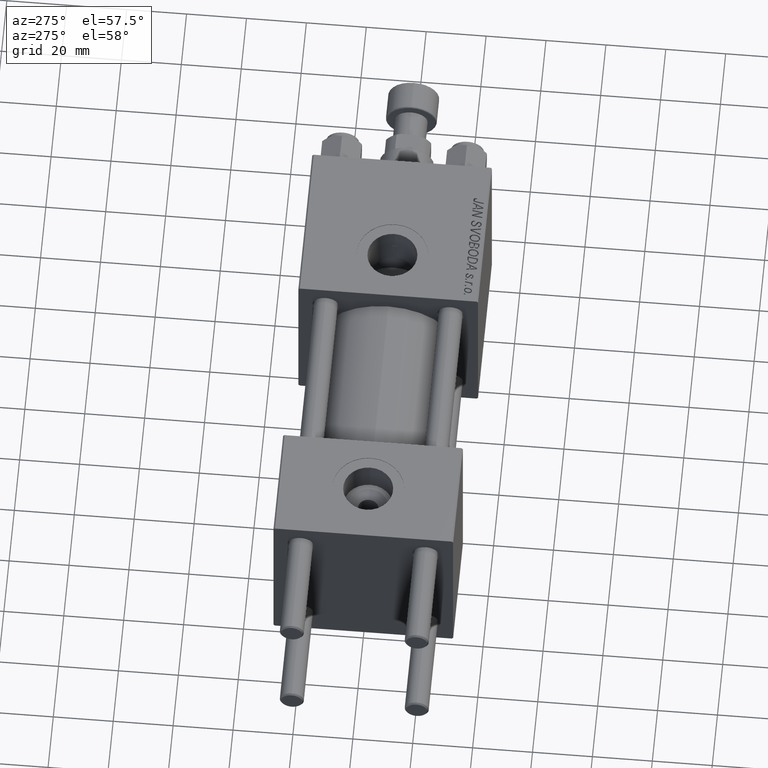
[diagram: clean part render]
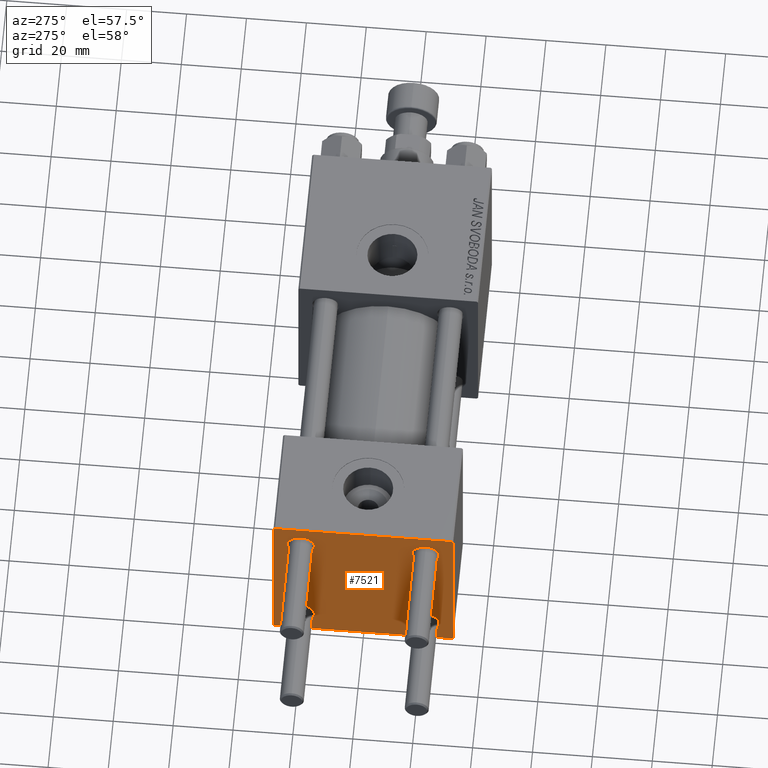
[diagram: same view with one face highlighted and labeled with its STEP entity id]
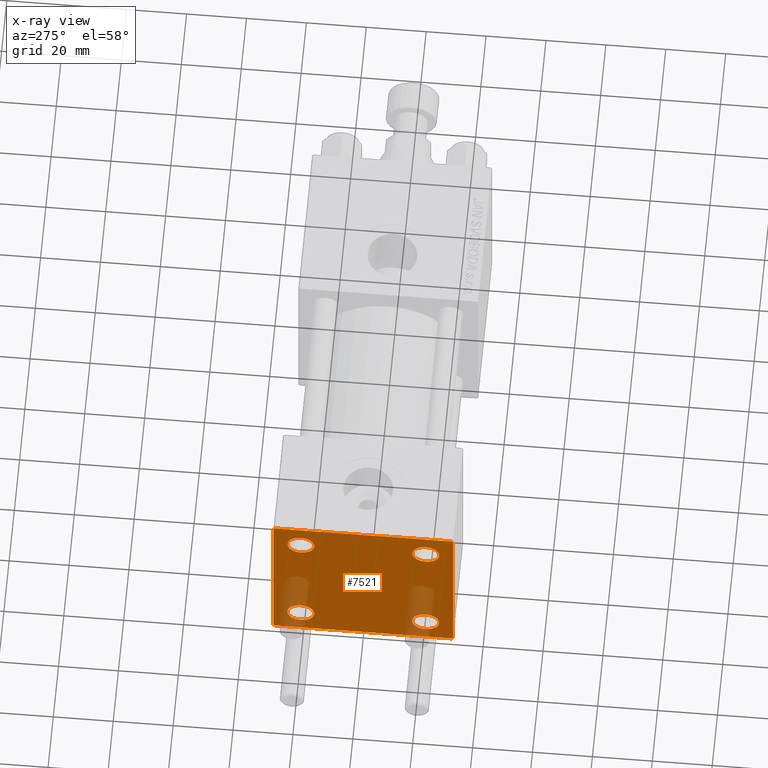
[diagram: x-ray of the same camera — body ghosted, the highlighted face saturated]
A machine part, auxiliary view. The second image highlights one B-rep face of the part: STEP entity #7521.
The next image is the same camera in x-ray: the body ghosted, the highlighted face saturated — about 12% of this face is hidden behind the body in this view.
In plain terms, the highlighted planar face has unit normal (-1, 0, 0).
Its self-contained STEP definition (entity closure, byte-faithful):
#463 = DIRECTION ( 'NONE',  ( 0.000000000000000000, 0.000000000000000000, 1.000000000000000000 ) ) ;
#592 = EDGE_LOOP ( 'NONE', ( #16295, #11331 ) ) ;
#829 = EDGE_LOOP ( 'NONE', ( #31795, #32333, #14890, #9513, #2481, #23166, #21589, #40036 ) ) ;
#1098 = EDGE_LOOP ( 'NONE', ( #7085, #9640 ) ) ;
#1324 = AXIS2_PLACEMENT_3D ( 'NONE', #30950, #12125, #12372 ) ;
#1738 = FACE_BOUND ( 'NONE', #18914, .T. ) ;
#1773 = DIRECTION ( 'NONE',  ( -0.000000000000000000, -0.7071067811865574537, -0.7071067811865376918 ) ) ;
#1895 = VERTEX_POINT ( 'NONE', #23723 ) ;
#2176 = LINE ( 'NONE', #10041, #46136 ) ;
#2352 = ORIENTED_EDGE ( 'NONE', *, *, #44923, .T. ) ;
#2481 = ORIENTED_EDGE ( 'NONE', *, *, #28771, .F. ) ;
#3022 = DIRECTION ( 'NONE',  ( 1.000000000000000000, -0.000000000000000000, 0.000000000000000000 ) ) ;
#3479 = CIRCLE ( 'NONE', #9967, 4.500000000000017764 ) ;
#3991 = EDGE_CURVE ( 'NONE', #32459, #26860, #38573, .T. ) ;
#4057 = LINE ( 'NONE', #35073, #32756 ) ;
#4272 = DIRECTION ( 'NONE',  ( 0.000000000000000000, 0.000000000000000000, 1.000000000000000000 ) ) ;
#5187 = CARTESIAN_POINT ( 'NONE',  ( 0.000000000000000000, -29.49999999999998579, 29.99999999999999289 ) ) ;
#5299 = DIRECTION ( 'NONE',  ( 0.000000000000000000, 0.000000000000000000, 1.000000000000000000 ) ) ;
#6192 = VERTEX_POINT ( 'NONE', #23427 ) ;
#6291 = DIRECTION ( 'NONE',  ( -0.000000000000000000, 0.000000000000000000, 1.000000000000000000 ) ) ;
#6547 = DIRECTION ( 'NONE',  ( -1.000000000000000000, 0.000000000000000000, -0.000000000000000000 ) ) ;
#6849 = CIRCLE ( 'NONE', #40983, 4.500000000000017764 ) ;
#6890 = ORIENTED_EDGE ( 'NONE', *, *, #35384, .T. ) ;
#6911 = DIRECTION ( 'NONE',  ( 1.000000000000000000, -0.000000000000000000, 0.000000000000000000 ) ) ;
#6950 = EDGE_CURVE ( 'NONE', #23590, #48158, #2176, .T. ) ;
#7085 = ORIENTED_EDGE ( 'NONE', *, *, #23112, .T. ) ;
#7521 = ADVANCED_FACE ( 'NONE', ( #25880, #1738, #49013, #29181, #21038 ), #32997, .T. ) ;
#8605 = CIRCLE ( 'NONE', #1324, 4.500000000000017764 ) ;
#8622 = DIRECTION ( 'NONE',  ( 1.000000000000000000, -0.000000000000000000, 0.000000000000000000 ) ) ;
#9347 = EDGE_CURVE ( 'NONE', #44295, #32459, #35184, .T. ) ;
#9513 = ORIENTED_EDGE ( 'NONE', *, *, #35854, .T. ) ;
#9640 = ORIENTED_EDGE ( 'NONE', *, *, #24518, .T. ) ;
#9967 = AXIS2_PLACEMENT_3D ( 'NONE', #25207, #21381, #17579 ) ;
#10041 = CARTESIAN_POINT ( 'NONE',  ( 0.000000000000000000, 29.99999999999999289, -30.00000000000000000 ) ) ;
#10084 = EDGE_CURVE ( 'NONE', #16764, #23608, #35440, .T. ) ;
#10240 = DIRECTION ( 'NONE',  ( 0.000000000000000000, 0.000000000000000000, 1.000000000000000000 ) ) ;
#10492 = CARTESIAN_POINT ( 'NONE',  ( 0.000000000000000000, 20.84999999999999787, -20.85000000000000142 ) ) ;
#10841 = DIRECTION ( 'NONE',  ( 0.000000000000000000, 0.000000000000000000, 1.000000000000000000 ) ) ;
#10977 = CARTESIAN_POINT ( 'NONE',  ( 0.000000000000000000, 20.84999999999999787, -25.35000000000001918 ) ) ;
#11126 = CARTESIAN_POINT ( 'NONE',  ( 0.000000000000000000, 29.99999999999999289, 30.00000000000000000 ) ) ;
#11331 = ORIENTED_EDGE ( 'NONE', *, *, #23186, .T. ) ;
#12125 = DIRECTION ( 'NONE',  ( 1.000000000000000000, -0.000000000000000000, 0.000000000000000000 ) ) ;
#12303 = CARTESIAN_POINT ( 'NONE',  ( -0.000000000000000000, -29.74999999999999645, 29.74999999999999645 ) ) ;
#12372 = DIRECTION ( 'NONE',  ( 0.000000000000000000, 0.000000000000000000, 1.000000000000000000 ) ) ;
#12410 = EDGE_CURVE ( 'NONE', #44295, #23608, #37035, .T. ) ;
#14344 = CARTESIAN_POINT ( 'NONE',  ( 0.000000000000000000, 29.99999999999999289, -29.50000000000000000 ) ) ;
#14399 = DIRECTION ( 'NONE',  ( 0.000000000000000000, -1.000000000000000000, -1.156482317317871725E-16 ) ) ;
#14890 = ORIENTED_EDGE ( 'NONE', *, *, #6950, .T. ) ;
#14906 = DIRECTION ( 'NONE',  ( 1.000000000000000000, -0.000000000000000000, 0.000000000000000000 ) ) ;
#15862 = CARTESIAN_POINT ( 'NONE',  ( 0.000000000000000000, -20.84999999999999076, -25.35000000000002274 ) ) ;
#15961 = CARTESIAN_POINT ( 'NONE',  ( 0.000000000000000000, 20.84999999999999787, 20.85000000000000142 ) ) ;
#16272 = CARTESIAN_POINT ( 'NONE',  ( 0.000000000000000000, -20.84999999999999076, -20.85000000000000497 ) ) ;
#16295 = ORIENTED_EDGE ( 'NONE', *, *, #38748, .T. ) ;
#16399 = AXIS2_PLACEMENT_3D ( 'NONE', #45486, #3022, #22084 ) ;
#16604 = DIRECTION ( 'NONE',  ( 0.000000000000000000, 0.7071067811865474617, -0.7071067811865474617 ) ) ;
#16764 = VERTEX_POINT ( 'NONE', #39709 ) ;
#16960 = CIRCLE ( 'NONE', #25055, 4.500000000000017764 ) ;
#17579 = DIRECTION ( 'NONE',  ( 0.000000000000000000, 0.000000000000000000, 1.000000000000000000 ) ) ;
#17975 = CARTESIAN_POINT ( 'NONE',  ( 0.000000000000000000, -20.84999999999999076, -20.85000000000000497 ) ) ;
#18914 = EDGE_LOOP ( 'NONE', ( #24645, #2352 ) ) ;
#19370 = AXIS2_PLACEMENT_3D ( 'NONE', #45457, #6547, #6291 ) ;
#20174 = CARTESIAN_POINT ( 'NONE',  ( 0.000000000000000000, 29.74999999999999645, 29.74999999999999645 ) ) ;
#21038 = FACE_OUTER_BOUND ( 'NONE', #829, .T. ) ;
#21381 = DIRECTION ( 'NONE',  ( 1.000000000000000000, -0.000000000000000000, 0.000000000000000000 ) ) ;
#21589 = ORIENTED_EDGE ( 'NONE', *, *, #12410, .F. ) ;
#22084 = DIRECTION ( 'NONE',  ( 0.000000000000000000, 0.000000000000000000, 1.000000000000000000 ) ) ;
#23112 = EDGE_CURVE ( 'NONE', #44625, #43223, #3479, .T. ) ;
#23166 = ORIENTED_EDGE ( 'NONE', *, *, #10084, .T. ) ;
#23186 = EDGE_CURVE ( 'NONE', #1895, #38231, #6849, .T. ) ;
#23427 = CARTESIAN_POINT ( 'NONE',  ( 0.000000000000000000, -20.84999999999999076, -16.34999999999998721 ) ) ;
#23590 = VERTEX_POINT ( 'NONE', #32149 ) ;
#23608 = VERTEX_POINT ( 'NONE', #5187 ) ;
#23644 = DIRECTION ( 'NONE',  ( 0.000000000000000000, 0.000000000000000000, -1.000000000000000000 ) ) ;
#23723 = CARTESIAN_POINT ( 'NONE',  ( 0.000000000000000000, 20.84999999999999787, 16.34999999999998366 ) ) ;
#24479 = CARTESIAN_POINT ( 'NONE',  ( 0.000000000000000000, -29.50000000000000000, -30.00000000000000711 ) ) ;
#24518 = EDGE_CURVE ( 'NONE', #43223, #44625, #26958, .T. ) ;
#24645 = ORIENTED_EDGE ( 'NONE', *, *, #31240, .T. ) ;
#24653 = LINE ( 'NONE', #47789, #46111 ) ;
#25055 = AXIS2_PLACEMENT_3D ( 'NONE', #17975, #14906, #10841 ) ;
#25207 = CARTESIAN_POINT ( 'NONE',  ( 0.000000000000000000, -20.84999999999999076, 20.85000000000000497 ) ) ;
#25880 = FACE_BOUND ( 'NONE', #1098, .T. ) ;
#26388 = DIRECTION ( 'NONE',  ( 0.000000000000000000, 0.000000000000000000, -1.000000000000000000 ) ) ;
#26860 = VERTEX_POINT ( 'NONE', #14344 ) ;
#26958 = CIRCLE ( 'NONE', #16399, 4.500000000000017764 ) ;
#28471 = CARTESIAN_POINT ( 'NONE',  ( 0.000000000000000000, 20.84999999999999787, -16.34999999999998366 ) ) ;
#28771 = EDGE_CURVE ( 'NONE', #16764, #49615, #4057, .T. ) ;
#29181 = FACE_BOUND ( 'NONE', #592, .T. ) ;
#29412 = CARTESIAN_POINT ( 'NONE',  ( 0.000000000000000000, 29.99999999999999289, 30.00000000000000000 ) ) ;
#29468 = ORIENTED_EDGE ( 'NONE', *, *, #50245, .T. ) ;
#29778 = VECTOR ( 'NONE', #34828, 1000.000000000000114 ) ;
#29969 = CARTESIAN_POINT ( 'NONE',  ( 0.000000000000000000, -20.84999999999999076, 25.35000000000002274 ) ) ;
#30765 = CARTESIAN_POINT ( 'NONE',  ( 0.000000000000000000, -29.75000000000001066, -29.75000000000001066 ) ) ;
#30950 = CARTESIAN_POINT ( 'NONE',  ( 0.000000000000000000, 20.84999999999999787, -20.85000000000000142 ) ) ;
#31240 = EDGE_CURVE ( 'NONE', #6192, #33230, #46621, .T. ) ;
#31466 = DIRECTION ( 'NONE',  ( 1.000000000000000000, -0.000000000000000000, 0.000000000000000000 ) ) ;
#31537 = CARTESIAN_POINT ( 'NONE',  ( 0.000000000000000000, 29.99999999999999289, 29.50000000000000000 ) ) ;
#31795 = ORIENTED_EDGE ( 'NONE', *, *, #3991, .T. ) ;
#32026 = AXIS2_PLACEMENT_3D ( 'NONE', #16272, #8622, #5299 ) ;
#32149 = CARTESIAN_POINT ( 'NONE',  ( 0.000000000000000000, 29.49999999999997868, -30.00000000000000000 ) ) ;
#32333 = ORIENTED_EDGE ( 'NONE', *, *, #43137, .T. ) ;
#32404 = VECTOR ( 'NONE', #16604, 1000.000000000000114 ) ;
#32459 = VERTEX_POINT ( 'NONE', #31537 ) ;
#32756 = VECTOR ( 'NONE', #23644, 1000.000000000000000 ) ;
#32997 = PLANE ( 'NONE',  #19370 ) ;
#33230 = VERTEX_POINT ( 'NONE', #15862 ) ;
#33417 = EDGE_LOOP ( 'NONE', ( #29468, #6890 ) ) ;
#33491 = VERTEX_POINT ( 'NONE', #10977 ) ;
#33750 = CARTESIAN_POINT ( 'NONE',  ( 0.000000000000000000, -30.00000000000000000, -29.50000000000001776 ) ) ;
#34666 = VECTOR ( 'NONE', #26388, 1000.000000000000000 ) ;
#34828 = DIRECTION ( 'NONE',  ( 0.000000000000000000, -0.7071067811865474617, 0.7071067811865474617 ) ) ;
#35073 = CARTESIAN_POINT ( 'NONE',  ( 0.000000000000000000, -30.00000000000000000, 29.99999999999999289 ) ) ;
#35184 = LINE ( 'NONE', #20174, #32404 ) ;
#35286 = DIRECTION ( 'NONE',  ( 1.000000000000000000, -0.000000000000000000, 0.000000000000000000 ) ) ;
#35384 = EDGE_CURVE ( 'NONE', #33491, #40667, #8605, .T. ) ;
#35440 = LINE ( 'NONE', #12303, #38798 ) ;
#35854 = EDGE_CURVE ( 'NONE', #48158, #49615, #42716, .T. ) ;
#36841 = CARTESIAN_POINT ( 'NONE',  ( 0.000000000000000000, -20.84999999999999076, 16.34999999999998721 ) ) ;
#37035 = LINE ( 'NONE', #29412, #42138 ) ;
#38231 = VERTEX_POINT ( 'NONE', #46961 ) ;
#38403 = CARTESIAN_POINT ( 'NONE',  ( 0.000000000000000000, 29.49999999999999289, 30.00000000000000000 ) ) ;
#38573 = LINE ( 'NONE', #11126, #34666 ) ;
#38748 = EDGE_CURVE ( 'NONE', #38231, #1895, #43529, .T. ) ;
#38798 = VECTOR ( 'NONE', #39990, 1000.000000000000114 ) ;
#39027 = CIRCLE ( 'NONE', #47954, 4.500000000000017764 ) ;
#39709 = CARTESIAN_POINT ( 'NONE',  ( 0.000000000000000000, -30.00000000000000000, 29.49999999999999289 ) ) ;
#39990 = DIRECTION ( 'NONE',  ( -0.000000000000000000, 0.7071067811865474617, 0.7071067811865474617 ) ) ;
#40036 = ORIENTED_EDGE ( 'NONE', *, *, #9347, .T. ) ;
#40667 = VERTEX_POINT ( 'NONE', #28471 ) ;
#40983 = AXIS2_PLACEMENT_3D ( 'NONE', #47238, #35286, #463 ) ;
#41898 = AXIS2_PLACEMENT_3D ( 'NONE', #15961, #31466, #4272 ) ;
#42138 = VECTOR ( 'NONE', #14399, 1000.000000000000000 ) ;
#42716 = LINE ( 'NONE', #30765, #29778 ) ;
#43137 = EDGE_CURVE ( 'NONE', #26860, #23590, #24653, .T. ) ;
#43223 = VERTEX_POINT ( 'NONE', #36841 ) ;
#43529 = CIRCLE ( 'NONE', #41898, 4.500000000000017764 ) ;
#44295 = VERTEX_POINT ( 'NONE', #38403 ) ;
#44625 = VERTEX_POINT ( 'NONE', #29969 ) ;
#44923 = EDGE_CURVE ( 'NONE', #33230, #6192, #16960, .T. ) ;
#45457 = CARTESIAN_POINT ( 'NONE',  ( 0.000000000000000000, 0.000000000000000000, 0.000000000000000000 ) ) ;
#45486 = CARTESIAN_POINT ( 'NONE',  ( 0.000000000000000000, -20.84999999999999076, 20.85000000000000497 ) ) ;
#46111 = VECTOR ( 'NONE', #1773, 999.9999999999998863 ) ;
#46136 = VECTOR ( 'NONE', #48950, 1000.000000000000000 ) ;
#46621 = CIRCLE ( 'NONE', #32026, 4.500000000000017764 ) ;
#46961 = CARTESIAN_POINT ( 'NONE',  ( 0.000000000000000000, 20.84999999999999787, 25.35000000000001918 ) ) ;
#47238 = CARTESIAN_POINT ( 'NONE',  ( 0.000000000000000000, 20.84999999999999787, 20.85000000000000142 ) ) ;
#47789 = CARTESIAN_POINT ( 'NONE',  ( 0.000000000000000000, 29.74999999999957723, -29.75000000000040501 ) ) ;
#47954 = AXIS2_PLACEMENT_3D ( 'NONE', #10492, #6911, #10240 ) ;
#48158 = VERTEX_POINT ( 'NONE', #24479 ) ;
#48950 = DIRECTION ( 'NONE',  ( 0.000000000000000000, -1.000000000000000000, -1.156482317317871725E-16 ) ) ;
#49013 = FACE_BOUND ( 'NONE', #33417, .T. ) ;
#49615 = VERTEX_POINT ( 'NONE', #33750 ) ;
#50245 = EDGE_CURVE ( 'NONE', #40667, #33491, #39027, .T. ) ;